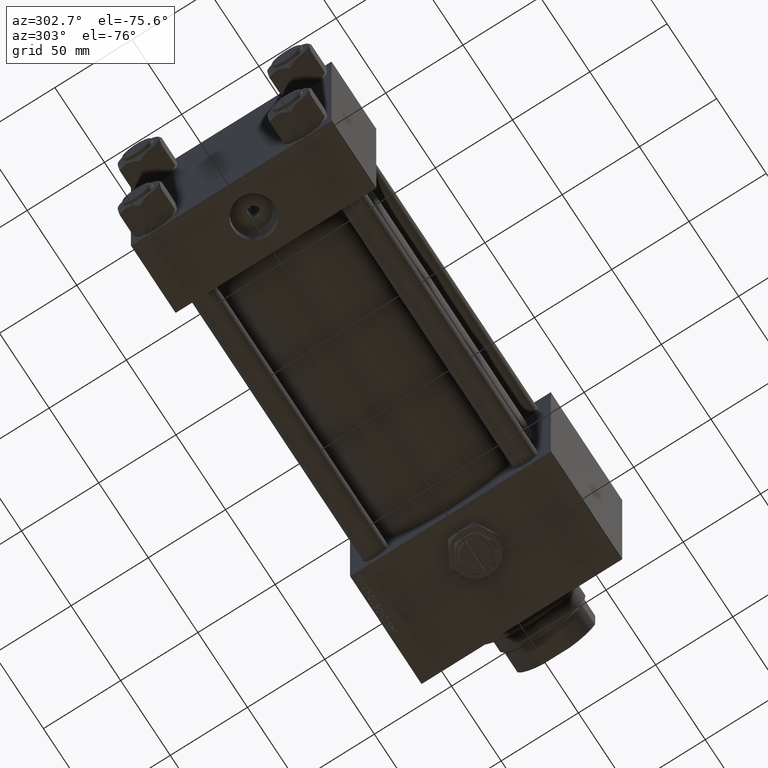
[diagram: clean part render]
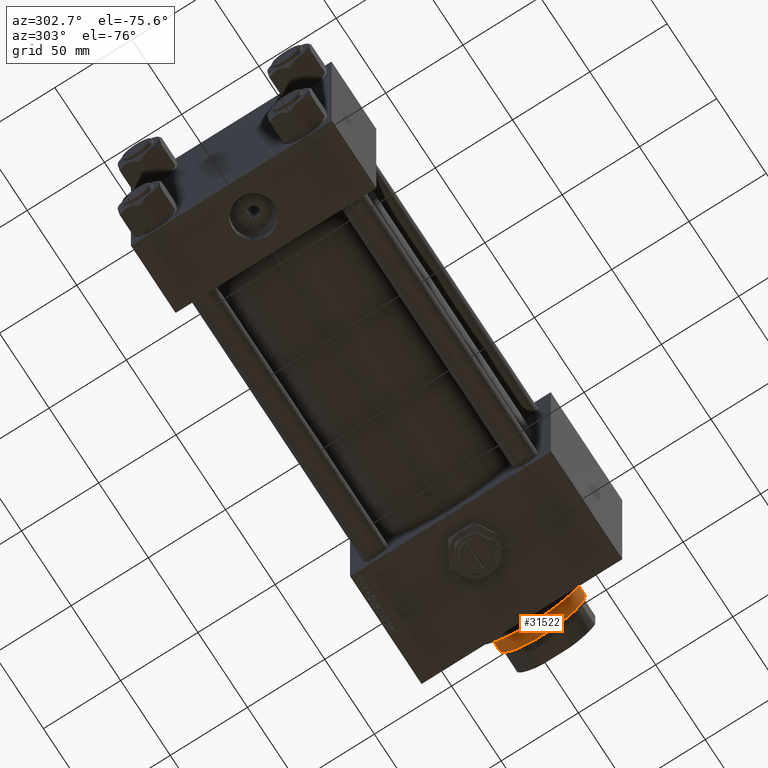
[diagram: same view with one face highlighted and labeled with its STEP entity id]
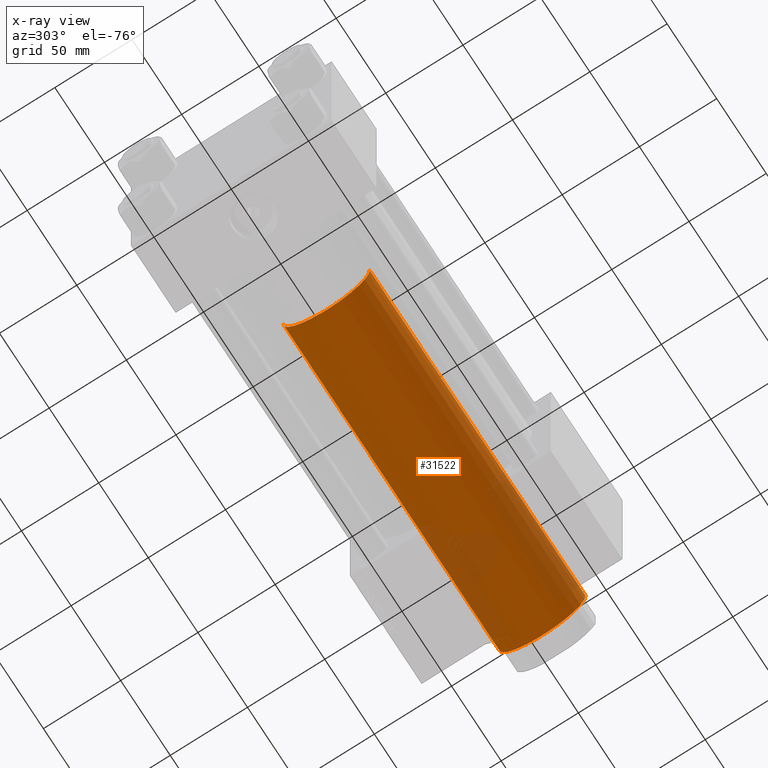
[diagram: x-ray of the same camera — body ghosted, the highlighted face saturated]
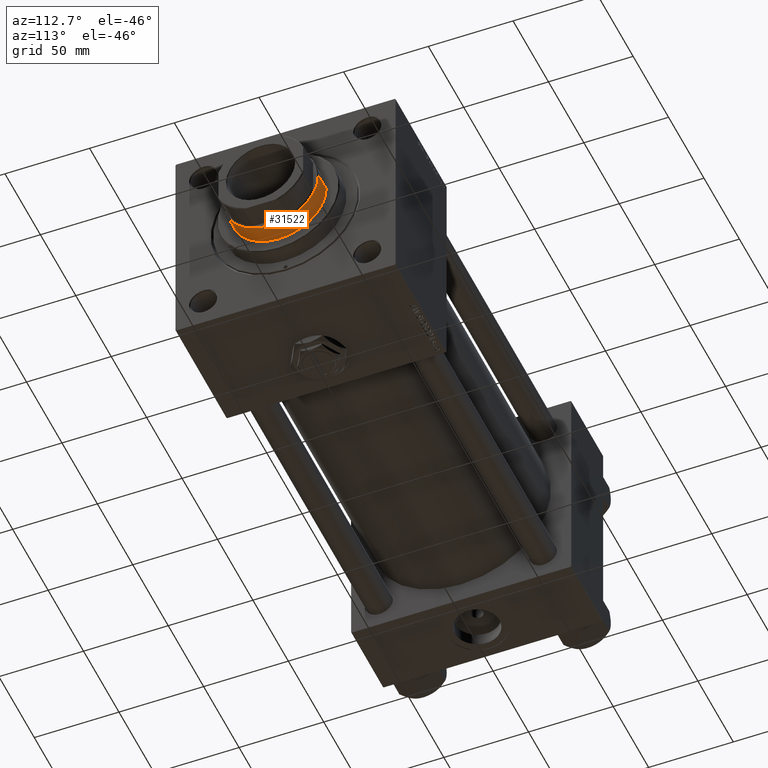
[diagram: same view with one face highlighted and labeled with its STEP entity id]
A machine part, auxiliary view. The second image highlights one B-rep face of the part: STEP entity #31522.
The next image is the same camera in x-ray: the body ghosted, the highlighted face saturated — about 20% of this face is hidden behind the body in this view.
A second angle (auxiliary view) of the same face is appended — the face is thin or edge-on in the first view.
In plain terms, the highlighted cylindrical surface (partial cylindrical patch) has radius 28 mm, axis along (-1, 0, 0).
Its self-contained STEP definition (entity closure, byte-faithful):
#1005 = VERTEX_POINT ( 'NONE', #29222 ) ;
#1156 = ORIENTED_EDGE ( 'NONE', *, *, #37555, .F. ) ;
#2647 = DIRECTION ( 'NONE',  ( 0.000000000000000000, 0.000000000000000000, 1.000000000000000000 ) ) ;
#3171 = DIRECTION ( 'NONE',  ( -0.000000000000000000, -0.000000000000000000, -1.000000000000000000 ) ) ;
#6597 = CARTESIAN_POINT ( 'NONE',  ( 28.00000000000000000, 3.429011037612589276E-15, 268.5000000000000000 ) ) ;
#9467 = DIRECTION ( 'NONE',  ( 1.000000000000000000, 0.000000000000000000, 0.000000000000000000 ) ) ;
#10845 = CIRCLE ( 'NONE', #14238, 28.00000000000000000 ) ;
#11204 = CARTESIAN_POINT ( 'NONE',  ( 0.000000000000000000, 0.000000000000000000, 269.0000000000000000 ) ) ;
#12746 = LINE ( 'NONE', #41126, #33484 ) ;
#12793 = CIRCLE ( 'NONE', #40138, 28.00000000000000000 ) ;
#14238 = AXIS2_PLACEMENT_3D ( 'NONE', #46566, #2647, #34273 ) ;
#15214 = FACE_OUTER_BOUND ( 'NONE', #48826, .T. ) ;
#17245 = CARTESIAN_POINT ( 'NONE',  ( 0.000000000000000000, 0.000000000000000000, 268.5000000000000000 ) ) ;
#18130 = VECTOR ( 'NONE', #46022, 1000.000000000000000 ) ;
#18678 = ORIENTED_EDGE ( 'NONE', *, *, #48008, .T. ) ;
#21562 = VERTEX_POINT ( 'NONE', #6597 ) ;
#27261 = DIRECTION ( 'NONE',  ( -1.000000000000000000, 0.000000000000000000, 0.000000000000000000 ) ) ;
#29077 = DIRECTION ( 'NONE',  ( -0.000000000000000000, -0.000000000000000000, -1.000000000000000000 ) ) ;
#29222 = CARTESIAN_POINT ( 'NONE',  ( -28.00000000000000000, 0.000000000000000000, 51.00000000000000000 ) ) ;
#30765 = VERTEX_POINT ( 'NONE', #52652 ) ;
#31522 = ADVANCED_FACE ( 'NONE', ( #15214 ), #45118, .T. ) ;
#32360 = AXIS2_PLACEMENT_3D ( 'NONE', #11204, #3171, #27261 ) ;
#33484 = VECTOR ( 'NONE', #29077, 1000.000000000000000 ) ;
#33593 = DIRECTION ( 'NONE',  ( 0.000000000000000000, 0.000000000000000000, -1.000000000000000000 ) ) ;
#34273 = DIRECTION ( 'NONE',  ( 1.000000000000000000, 0.000000000000000000, 0.000000000000000000 ) ) ;
#37555 = EDGE_CURVE ( 'NONE', #30765, #1005, #51107, .T. ) ;
#38395 = EDGE_CURVE ( 'NONE', #42582, #1005, #10845, .T. ) ;
#38970 = ORIENTED_EDGE ( 'NONE', *, *, #38395, .T. ) ;
#40138 = AXIS2_PLACEMENT_3D ( 'NONE', #17245, #33593, #9467 ) ;
#41126 = CARTESIAN_POINT ( 'NONE',  ( 28.00000000000000000, 3.429011037612589276E-15, 269.0000000000000000 ) ) ;
#42582 = VERTEX_POINT ( 'NONE', #46279 ) ;
#45118 = CYLINDRICAL_SURFACE ( 'NONE', #32360, 28.00000000000000000 ) ;
#46022 = DIRECTION ( 'NONE',  ( -0.000000000000000000, -0.000000000000000000, -1.000000000000000000 ) ) ;
#46279 = CARTESIAN_POINT ( 'NONE',  ( 28.00000000000000000, 3.429011037612589276E-15, 51.00000000000000000 ) ) ;
#46566 = CARTESIAN_POINT ( 'NONE',  ( 0.000000000000000000, 0.000000000000000000, 51.00000000000000000 ) ) ;
#48008 = EDGE_CURVE ( 'NONE', #30765, #21562, #12793, .T. ) ;
#48826 = EDGE_LOOP ( 'NONE', ( #18678, #52180, #38970, #1156 ) ) ;
#50837 = CARTESIAN_POINT ( 'NONE',  ( -28.00000000000000000, 0.000000000000000000, 269.0000000000000000 ) ) ;
#51107 = LINE ( 'NONE', #50837, #18130 ) ;
#52180 = ORIENTED_EDGE ( 'NONE', *, *, #52475, .T. ) ;
#52475 = EDGE_CURVE ( 'NONE', #21562, #42582, #12746, .T. ) ;
#52652 = CARTESIAN_POINT ( 'NONE',  ( -28.00000000000000000, 0.000000000000000000, 268.5000000000000000 ) ) ;